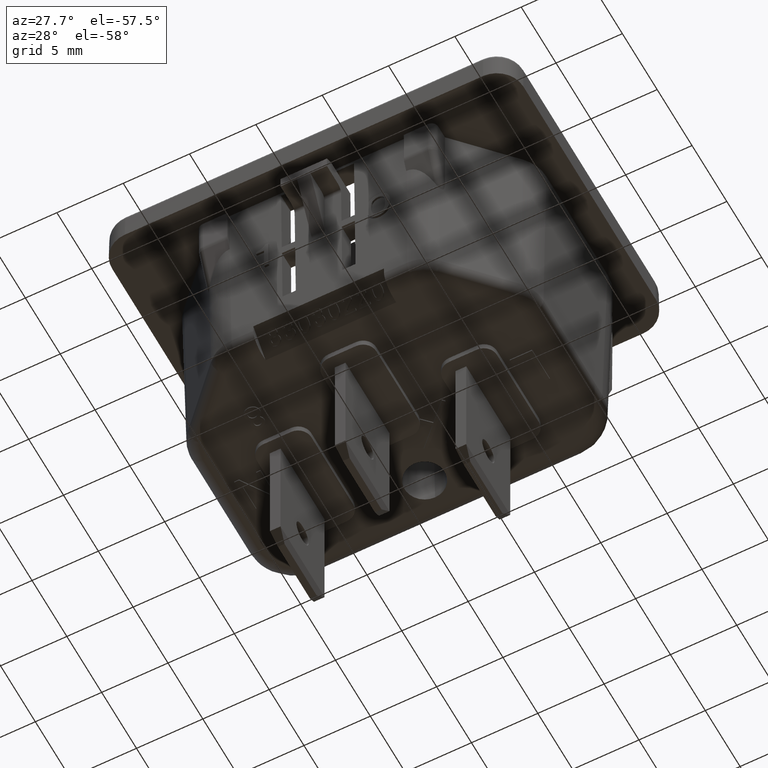
[diagram: clean part render]
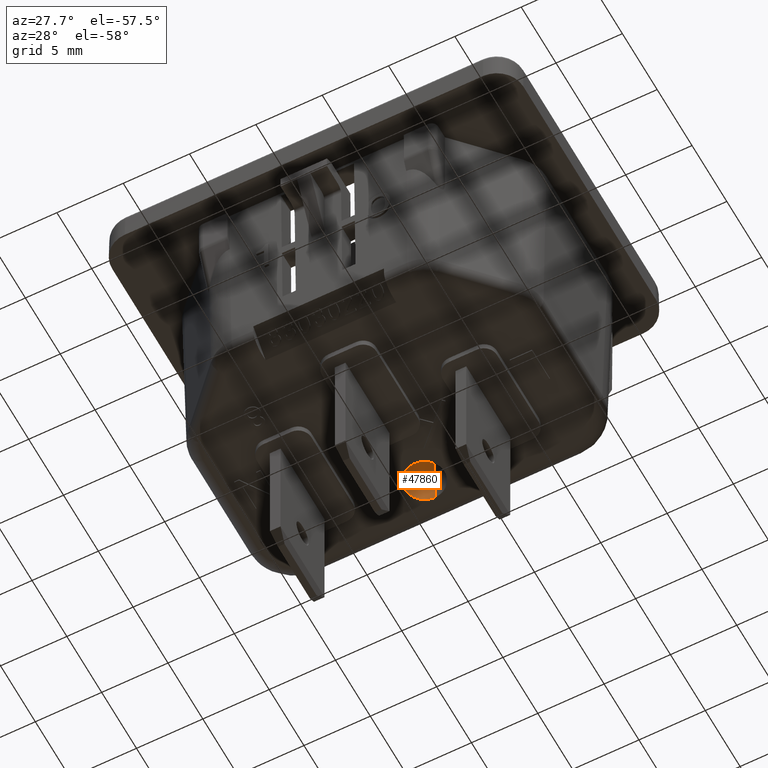
[diagram: same view with one face highlighted and labeled with its STEP entity id]
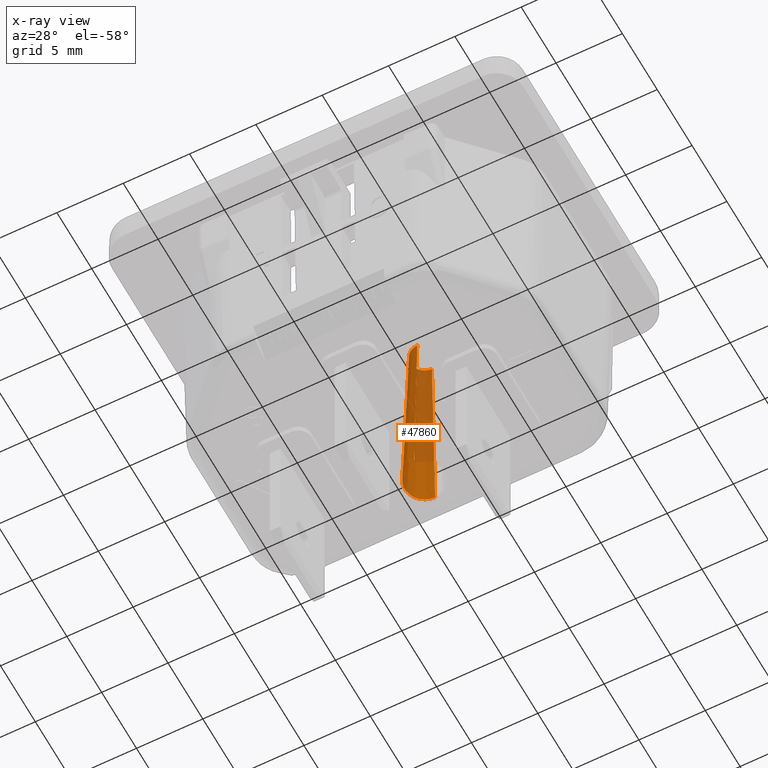
[diagram: x-ray of the same camera — body ghosted, the highlighted face saturated]
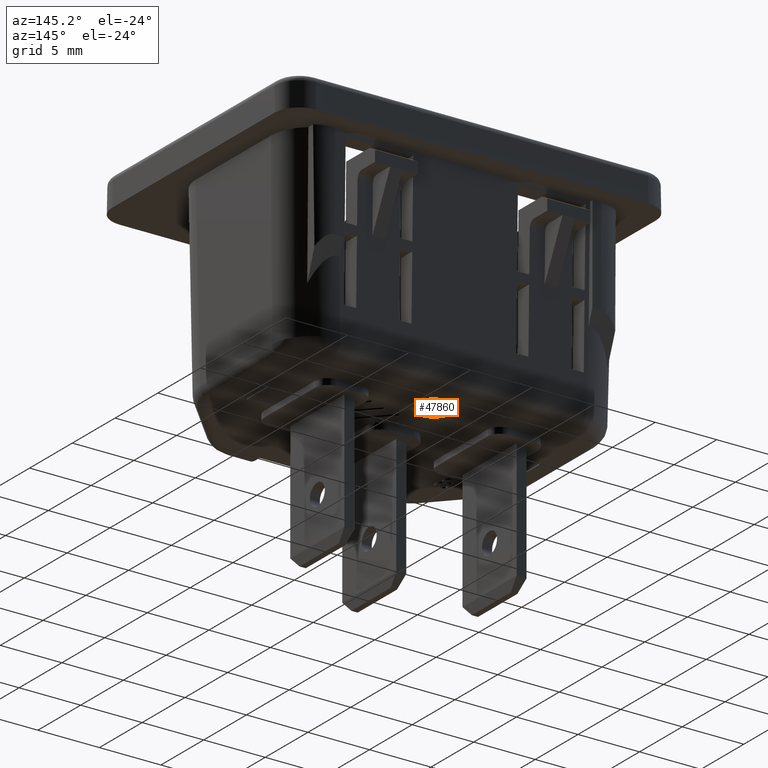
[diagram: same view with one face highlighted and labeled with its STEP entity id]
A machine part, auxiliary view. The second image highlights one B-rep face of the part: STEP entity #47860.
The next image is the same camera in x-ray: the body ghosted, the highlighted face saturated — about 64% of this face is hidden behind the body in this view.
A second angle (auxiliary view) of the same face is appended — the face is thin or edge-on in the first view.
In plain terms, the highlighted conical surface has half-angle 1.694 deg.
Its self-contained STEP definition (entity closure, byte-faithful):
#46900=CARTESIAN_POINT('',(13.394693,25.98836,-5.82858760699192));
#46910=DIRECTION('',(0.,-1.,0.));
#46920=DIRECTION('',(0.,0.,-1.));
#46930=AXIS2_PLACEMENT_3D('',#46900,#46910,#46920);
#46940=CIRCLE('',#46930,1.05234129901962);
#46950=CARTESIAN_POINT('',(13.394693,25.98836,-6.88092890601154));
#46960=VERTEX_POINT('',#46950);
#46970=CARTESIAN_POINT('',(13.394693,25.98836,-4.77624630797231));
#46980=VERTEX_POINT('',#46970);
#47010=EDGE_CURVE('',#46980,#46960,#46940,.T.);
#47550=CARTESIAN_POINT('',(13.394693,10.03836,-5.82858760699192));
#47560=DIRECTION('',(0.,-1.,0.));
#47570=DIRECTION('',(0.,0.,-1.));
#47580=AXIS2_PLACEMENT_3D('',#47550,#47560,#47570);
#47590=CONICAL_SURFACE('',#47580,1.52400000000001,0.0295624634874206);
#47600=CARTESIAN_POINT('',(13.394693,10.03836,-4.30458760699192));
#47610=DIRECTION('',(0.,-0.999563062199092,0.0295581577093921));
#47620=VECTOR('',#47610,51.5593703431576);
#47630=LINE('',#47600,#47620);
#47640=CARTESIAN_POINT('',(13.394693,10.67836,-4.32351309718799));
#47650=VERTEX_POINT('',#47640);
#47660=EDGE_CURVE('',#46980,#47650,#47630,.T.);
#47670=ORIENTED_EDGE('',*,*,#47660,.T.);
#47680=ORIENTED_EDGE('',*,*,#47010,.F.);
#47690=CARTESIAN_POINT('',(13.394693,10.03836,-7.35258760699193));
#47700=DIRECTION('',(0.,-0.999563062199092,-0.0295581577093921));
#47710=VECTOR('',#47700,51.5593703431576);
#47720=LINE('',#47690,#47710);
#47730=CARTESIAN_POINT('',(13.394693,10.67836,-7.33366211679585));
#47740=VERTEX_POINT('',#47730);
#47750=EDGE_CURVE('',#46960,#47740,#47720,.T.);
#47760=ORIENTED_EDGE('',*,*,#47750,.F.);
#47770=CARTESIAN_POINT('',(13.394693,10.67836,-5.82858760699192));
#47780=DIRECTION('',(0.,-1.,0.));
#47790=DIRECTION('',(0.,0.,-1.));
#47800=AXIS2_PLACEMENT_3D('',#47770,#47780,#47790);
#47810=CIRCLE('',#47800,1.50507450980393);
#47820=EDGE_CURVE('',#47650,#47740,#47810,.T.);
#47830=ORIENTED_EDGE('',*,*,#47820,.T.);
#47840=EDGE_LOOP('',(#47830,#47760,#47680,#47670));
#47850=FACE_OUTER_BOUND('',#47840,.T.);
#47860=ADVANCED_FACE('',(#47850),#47590,.F.);